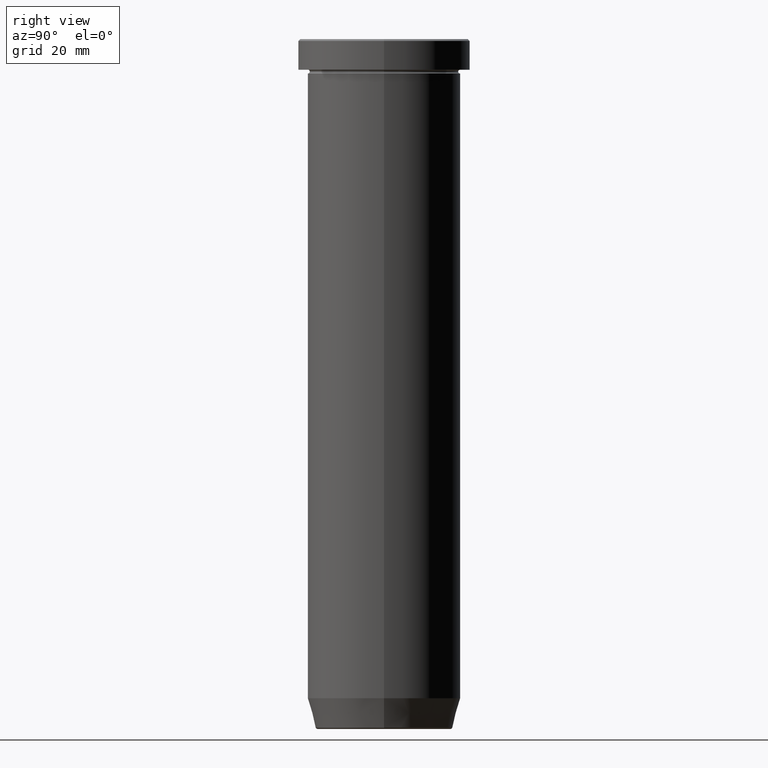
[diagram: clean part render]
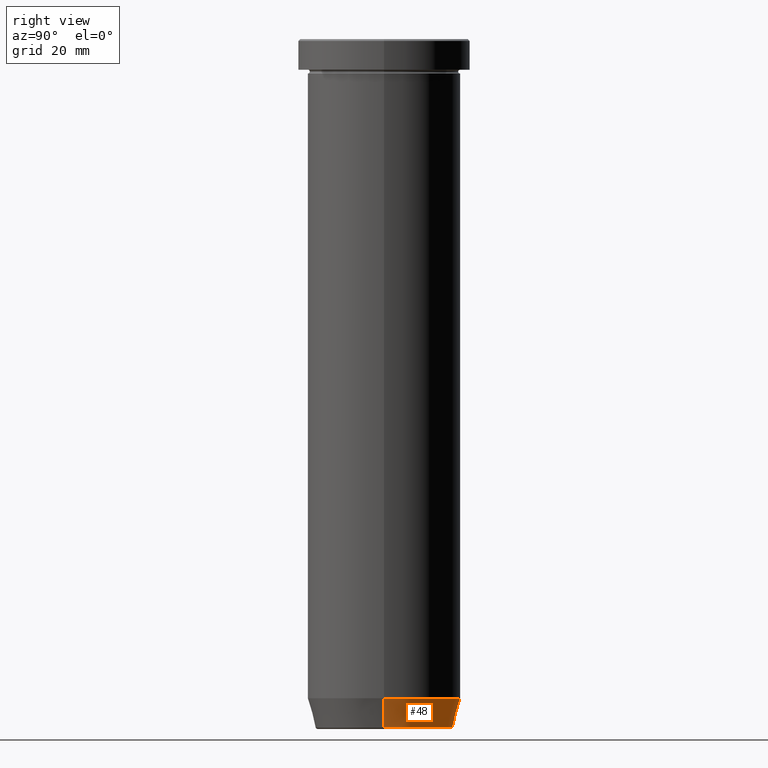
[diagram: same view with one face highlighted and labeled with its STEP entity id]
A machine part, right view. The second image highlights one B-rep face of the part: STEP entity #48.
In plain terms, the highlighted conical surface has half-angle 15 deg.
Its self-contained STEP definition (entity closure, byte-faithful):
#39 = EDGE_LOOP ( 'NONE', ( #346, #55, #583, #192 ) ) ;
#47 = EDGE_CURVE ( 'NONE', #120, #461, #555, .T. ) ;
#48 = ADVANCED_FACE ( 'NONE', ( #64 ), #110, .T. ) ;
#55 = ORIENTED_EDGE ( 'NONE', *, *, #465, .T. ) ;
#64 = FACE_OUTER_BOUND ( 'NONE', #39, .T. ) ;
#85 = CIRCLE ( 'NONE', #464, 20.00000000000000355 ) ;
#88 = CARTESIAN_POINT ( 'NONE',  ( 17.95570587970608045, 0.000000000000000000, -179.6294095225512422 ) ) ;
#104 = CARTESIAN_POINT ( 'NONE',  ( 0.000000000000000000, 0.000000000000000000, -172.0000000000000000 ) ) ;
#109 = CARTESIAN_POINT ( 'NONE',  ( -20.00000000000000355, 2.449293598294706907E-15, -172.0000000000000000 ) ) ;
#110 = CONICAL_SURFACE ( 'NONE', #526, 17.85640646055102110, 0.2617993877991491858 ) ;
#120 = VERTEX_POINT ( 'NONE', #88 ) ;
#123 = AXIS2_PLACEMENT_3D ( 'NONE', #477, #205, #532 ) ;
#159 = VECTOR ( 'NONE', #484, 1000.000000000000000 ) ;
#192 = ORIENTED_EDGE ( 'NONE', *, *, #544, .F. ) ;
#205 = DIRECTION ( 'NONE',  ( -0.000000000000000000, -0.000000000000000000, 1.000000000000000000 ) ) ;
#247 = LINE ( 'NONE', #393, #284 ) ;
#256 = DIRECTION ( 'NONE',  ( 1.000000000000000000, 0.000000000000000000, 0.000000000000000000 ) ) ;
#284 = VECTOR ( 'NONE', #383, 1000.000000000000000 ) ;
#298 = CARTESIAN_POINT ( 'NONE',  ( 17.85640646055102110, 0.000000000000000000, -180.0000000000000000 ) ) ;
#309 = EDGE_CURVE ( 'NONE', #336, #491, #85, .T. ) ;
#325 = DIRECTION ( 'NONE',  ( 1.000000000000000000, 0.000000000000000000, 0.000000000000000000 ) ) ;
#336 = VERTEX_POINT ( 'NONE', #418 ) ;
#338 = DIRECTION ( 'NONE',  ( -0.000000000000000000, -0.000000000000000000, 1.000000000000000000 ) ) ;
#346 = ORIENTED_EDGE ( 'NONE', *, *, #47, .T. ) ;
#383 = DIRECTION ( 'NONE',  ( -0.2588190451025205174, 3.169619151431761860E-17, 0.9659258262890684232 ) ) ;
#385 = LINE ( 'NONE', #298, #159 ) ;
#386 = CARTESIAN_POINT ( 'NONE',  ( 0.000000000000000000, 0.000000000000000000, -180.0000000000000000 ) ) ;
#393 = CARTESIAN_POINT ( 'NONE',  ( -17.85640646055102110, 2.186779101618792840E-15, -180.0000000000000000 ) ) ;
#418 = CARTESIAN_POINT ( 'NONE',  ( 20.00000000000000355, 0.000000000000000000, -172.0000000000000000 ) ) ;
#440 = CARTESIAN_POINT ( 'NONE',  ( -17.95570587970608045, 2.324116685748021765E-15, -179.6294095225512422 ) ) ;
#461 = VERTEX_POINT ( 'NONE', #440 ) ;
#464 = AXIS2_PLACEMENT_3D ( 'NONE', #104, #566, #325 ) ;
#465 = EDGE_CURVE ( 'NONE', #461, #491, #247, .T. ) ;
#477 = CARTESIAN_POINT ( 'NONE',  ( 0.000000000000000000, 0.000000000000000000, -179.6294095225512422 ) ) ;
#484 = DIRECTION ( 'NONE',  ( 0.2588190451025205174, 0.000000000000000000, 0.9659258262890684232 ) ) ;
#491 = VERTEX_POINT ( 'NONE', #109 ) ;
#526 = AXIS2_PLACEMENT_3D ( 'NONE', #386, #338, #256 ) ;
#532 = DIRECTION ( 'NONE',  ( -1.000000000000000000, 0.000000000000000000, 0.000000000000000000 ) ) ;
#544 = EDGE_CURVE ( 'NONE', #120, #336, #385, .T. ) ;
#555 = CIRCLE ( 'NONE', #123, 17.95570587970608045 ) ;
#566 = DIRECTION ( 'NONE',  ( -0.000000000000000000, -0.000000000000000000, 1.000000000000000000 ) ) ;
#583 = ORIENTED_EDGE ( 'NONE', *, *, #309, .F. ) ;